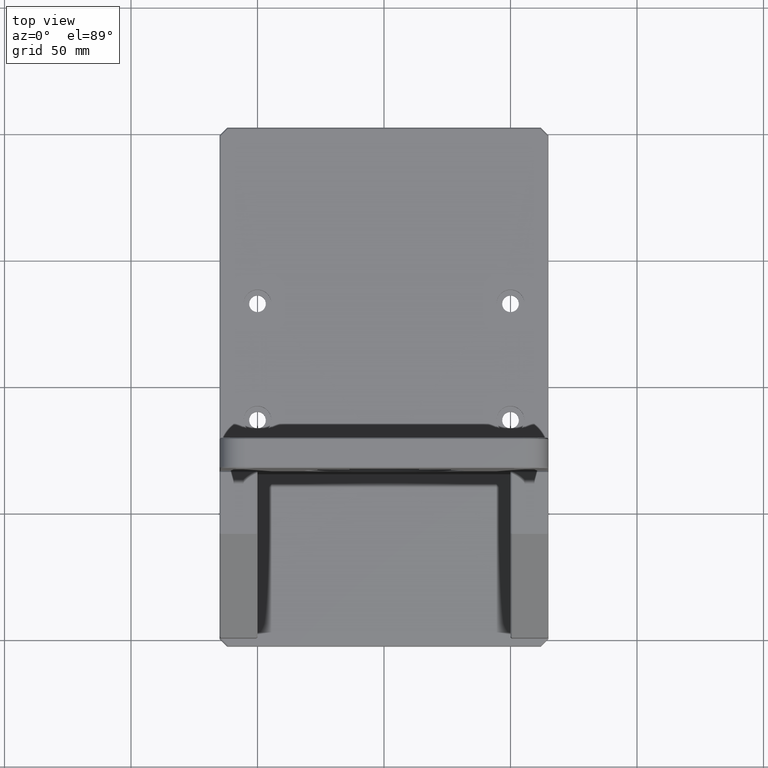
[diagram: clean part render]
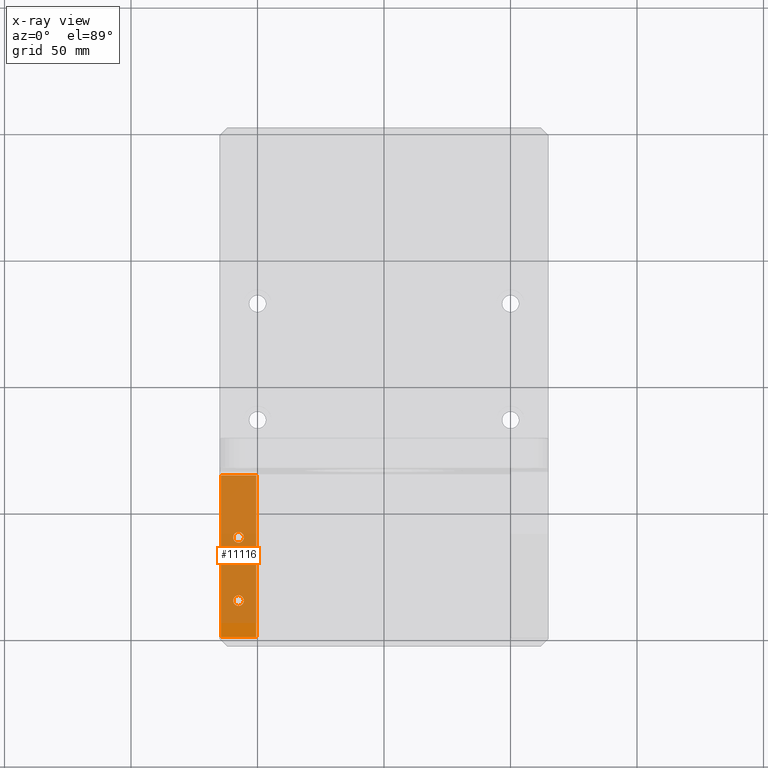
[diagram: x-ray — body ghosted, one internal face saturated and labeled with its STEP entity id]
A machine part, top view, then the same camera in x-ray: the body is ghosted and one INTERNAL B-rep face — a face not visible from any outside direction — is saturated and labeled: STEP entity #11116.
In plain terms, the highlighted planar face has unit normal (0, 0, 1).
Its self-contained STEP definition (entity closure, byte-faithful):
#134 = EDGE_LOOP ( 'NONE', ( #8540, #10368 ) ) ;
#165 = ORIENTED_EDGE ( 'NONE', *, *, #6118, .T. ) ;
#235 = CARTESIAN_POINT ( 'NONE',  ( -64.49999999999850786, -99.00000000000095213, 12.00000000000068034 ) ) ;
#548 = AXIS2_PLACEMENT_3D ( 'NONE', #7259, #11566, #6461 ) ;
#726 = ORIENTED_EDGE ( 'NONE', *, *, #9653, .F. ) ;
#761 = EDGE_CURVE ( 'NONE', #12136, #11009, #10797, .T. ) ;
#1565 = CARTESIAN_POINT ( 'NONE',  ( -64.49999999999938893, -35.00000000000091660, 12.00000000000065903 ) ) ;
#1581 = DIRECTION ( 'NONE',  ( -1.047444401652940007E-14, 0.0000000000000000000, -1.000000000000000000 ) ) ;
#1630 = DIRECTION ( 'NONE',  ( -1.047444401652940007E-14, 0.0000000000000000000, -1.000000000000000000 ) ) ;
#2171 = DIRECTION ( 'NONE',  ( 1.047444401652939533E-14, 3.311995080575179564E-16, 1.000000000000000000 ) ) ;
#2574 = AXIS2_PLACEMENT_3D ( 'NONE', #5815, #1581, #10804 ) ;
#2687 = LINE ( 'NONE', #9723, #5873 ) ;
#2817 = DIRECTION ( 'NONE',  ( -1.047444401652940007E-14, 0.0000000000000000000, -1.000000000000000000 ) ) ;
#3319 = DIRECTION ( 'NONE',  ( -1.000000000000000000, -1.396592535537253342E-14, 1.047444401652940007E-14 ) ) ;
#3440 = DIRECTION ( 'NONE',  ( 1.396592535537253658E-14, -1.000000000000000000, 3.311995080573716721E-16 ) ) ;
#3969 = CIRCLE ( 'NONE', #9275, 2.099999999999990763 ) ;
#4392 = VERTEX_POINT ( 'NONE', #11672 ) ;
#4407 = CARTESIAN_POINT ( 'NONE',  ( -50.49999999999848654, -99.00000000000075318, 12.00000000000053291 ) ) ;
#4419 = FACE_OUTER_BOUND ( 'NONE', #11069, .T. ) ;
#4482 = PLANE ( 'NONE',  #8374 ) ;
#4740 = DIRECTION ( 'NONE',  ( -1.000000000000000000, -1.321694076934716042E-14, 1.073876437509456804E-14 ) ) ;
#4783 = CIRCLE ( 'NONE', #548, 2.099999999999990763 ) ;
#5440 = VERTEX_POINT ( 'NONE', #5844 ) ;
#5743 = ORIENTED_EDGE ( 'NONE', *, *, #8076, .F. ) ;
#5815 = CARTESIAN_POINT ( 'NONE',  ( -57.49999999999904077, -59.50000000000083844, 12.00000000000058442 ) ) ;
#5844 = CARTESIAN_POINT ( 'NONE',  ( -59.59999999999867271, -84.50000000000086686, 12.00000000000060751 ) ) ;
#5873 = VECTOR ( 'NONE', #10847, 1000.000000000000000 ) ;
#6118 = EDGE_CURVE ( 'NONE', #7869, #12136, #12785, .T. ) ;
#6147 = EDGE_LOOP ( 'NONE', ( #726, #5743 ) ) ;
#6208 = DIRECTION ( 'NONE',  ( -1.396592535537253658E-14, 1.000000000000000000, -3.311995080573716721E-16 ) ) ;
#6379 = CIRCLE ( 'NONE', #2574, 2.099999999999990763 ) ;
#6461 = DIRECTION ( 'NONE',  ( -1.000000000000000000, -1.321694076934716042E-14, 1.073876437509456804E-14 ) ) ;
#6668 = CARTESIAN_POINT ( 'NONE',  ( -57.49999999999868550, -84.50000000000083844, 12.00000000000058442 ) ) ;
#6683 = CARTESIAN_POINT ( 'NONE',  ( -50.49999999999847944, -99.50000000000075318, 12.00000000000053291 ) ) ;
#6749 = VECTOR ( 'NONE', #3319, 1000.000000000000000 ) ;
#7259 = CARTESIAN_POINT ( 'NONE',  ( -57.49999999999868550, -84.50000000000083844, 12.00000000000058442 ) ) ;
#7395 = VERTEX_POINT ( 'NONE', #9719 ) ;
#7488 = ORIENTED_EDGE ( 'NONE', *, *, #761, .T. ) ;
#7869 = VERTEX_POINT ( 'NONE', #12333 ) ;
#8076 = EDGE_CURVE ( 'NONE', #4392, #7395, #6379, .T. ) ;
#8374 = AXIS2_PLACEMENT_3D ( 'NONE', #11263, #2171, #6208 ) ;
#8470 = FACE_BOUND ( 'NONE', #6147, .T. ) ;
#8520 = EDGE_CURVE ( 'NONE', #10570, #5440, #11416, .T. ) ;
#8538 = EDGE_CURVE ( 'NONE', #9618, #7869, #2687, .T. ) ;
#8540 = ORIENTED_EDGE ( 'NONE', *, *, #8757, .F. ) ;
#8723 = CARTESIAN_POINT ( 'NONE',  ( -64.49999999999849365, -99.50000000000095213, 12.00000000000068034 ) ) ;
#8757 = EDGE_CURVE ( 'NONE', #5440, #10570, #4783, .T. ) ;
#8848 = DIRECTION ( 'NONE',  ( -1.396592535537253658E-14, 1.000000000000000000, -3.311995080573716721E-16 ) ) ;
#9275 = AXIS2_PLACEMENT_3D ( 'NONE', #12841, #1630, #4740 ) ;
#9332 = FACE_BOUND ( 'NONE', #134, .T. ) ;
#9522 = ORIENTED_EDGE ( 'NONE', *, *, #8538, .T. ) ;
#9618 = VERTEX_POINT ( 'NONE', #1565 ) ;
#9653 = EDGE_CURVE ( 'NONE', #7395, #4392, #3969, .T. ) ;
#9692 = CARTESIAN_POINT ( 'NONE',  ( -55.39999999999869118, -84.50000000000081002, 12.00000000000056311 ) ) ;
#9718 = AXIS2_PLACEMENT_3D ( 'NONE', #6668, #2817, #10717 ) ;
#9719 = CARTESIAN_POINT ( 'NONE',  ( -59.59999999999902798, -59.50000000000086686, 12.00000000000060751 ) ) ;
#9723 = CARTESIAN_POINT ( 'NONE',  ( -64.99999999999937472, -35.00000000000092371, 12.00000000000066436 ) ) ;
#9789 = CARTESIAN_POINT ( 'NONE',  ( -64.99999999999849365, -99.00000000000095213, 12.00000000000068567 ) ) ;
#9866 = ORIENTED_EDGE ( 'NONE', *, *, #12201, .T. ) ;
#10079 = VECTOR ( 'NONE', #3440, 1000.000000000000000 ) ;
#10368 = ORIENTED_EDGE ( 'NONE', *, *, #8520, .F. ) ;
#10570 = VERTEX_POINT ( 'NONE', #9692 ) ;
#10717 = DIRECTION ( 'NONE',  ( -1.000000000000000000, -1.321694076934716042E-14, 1.073876437509456804E-14 ) ) ;
#10797 = LINE ( 'NONE', #9789, #6749 ) ;
#10804 = DIRECTION ( 'NONE',  ( -1.000000000000000000, -1.321694076934716042E-14, 1.073876437509456804E-14 ) ) ;
#10847 = DIRECTION ( 'NONE',  ( 1.000000000000000000, 1.396592535537253342E-14, -1.047444401652940007E-14 ) ) ;
#11009 = VERTEX_POINT ( 'NONE', #235 ) ;
#11069 = EDGE_LOOP ( 'NONE', ( #9866, #9522, #165, #7488 ) ) ;
#11116 = ADVANCED_FACE ( 'NONE', ( #4419, #8470, #9332 ), #4482, .F. ) ;
#11263 = CARTESIAN_POINT ( 'NONE',  ( -64.99999999999847944, -99.50000000000095213, 12.00000000000068567 ) ) ;
#11314 = VECTOR ( 'NONE', #8848, 1000.000000000000000 ) ;
#11416 = CIRCLE ( 'NONE', #9718, 2.099999999999990763 ) ;
#11566 = DIRECTION ( 'NONE',  ( -1.047444401652940007E-14, 0.0000000000000000000, -1.000000000000000000 ) ) ;
#11672 = CARTESIAN_POINT ( 'NONE',  ( -55.39999999999904645, -59.50000000000081002, 12.00000000000056311 ) ) ;
#11825 = LINE ( 'NONE', #8723, #11314 ) ;
#12136 = VERTEX_POINT ( 'NONE', #4407 ) ;
#12201 = EDGE_CURVE ( 'NONE', #11009, #9618, #11825, .T. ) ;
#12333 = CARTESIAN_POINT ( 'NONE',  ( -50.49999999999938183, -35.00000000000072475, 12.00000000000051159 ) ) ;
#12785 = LINE ( 'NONE', #6683, #10079 ) ;
#12841 = CARTESIAN_POINT ( 'NONE',  ( -57.49999999999904077, -59.50000000000083844, 12.00000000000058442 ) ) ;